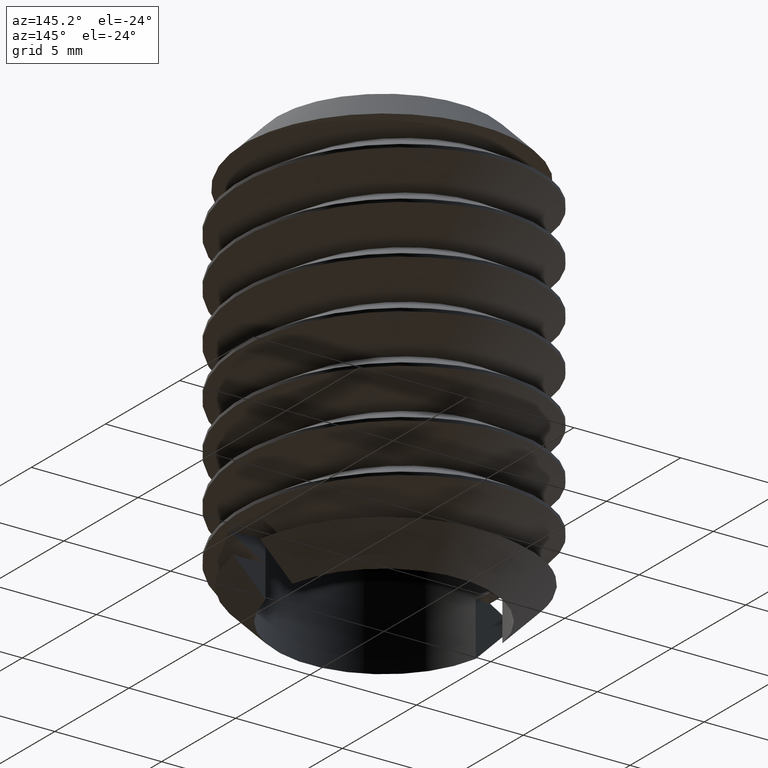
[diagram: clean part render]
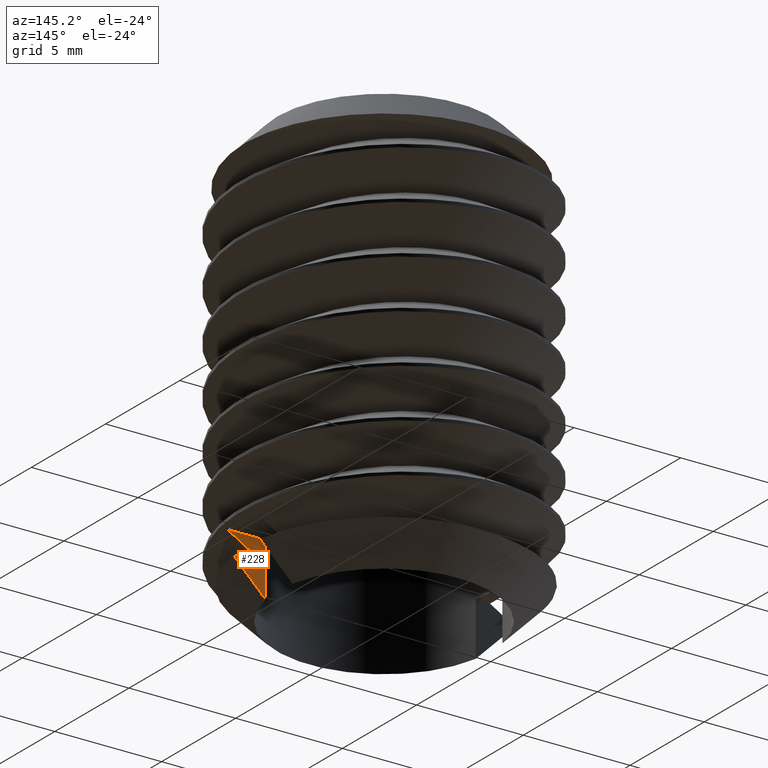
[diagram: same view with one face highlighted and labeled with its STEP entity id]
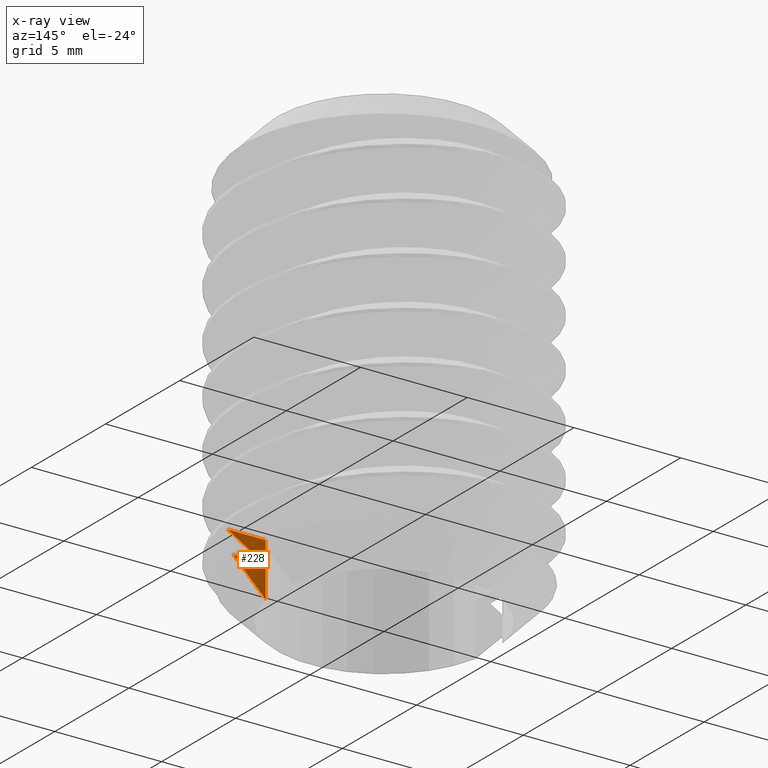
[diagram: x-ray of the same camera — body ghosted, the highlighted face saturated]
A machine part, auxiliary view. The second image highlights one B-rep face of the part: STEP entity #228.
The next image is the same camera in x-ray: the body ghosted, the highlighted face saturated — about 0% of this face is hidden behind the body in this view.
In plain terms, the highlighted planar face has unit normal (0, -1, 0).
Its self-contained STEP definition (entity closure, byte-faithful):
#5 = EDGE_LOOP ( 'NONE', ( #2209, #2208, #2207, #2206, #2205, #2204 ) ) ;
#58 = FACE_OUTER_BOUND ( 'NONE', #5, .T. ) ;
#75 = LINE ( 'NONE', #1360, #76 ) ;
#76 = VECTOR ( 'NONE', #1283, 1000.000000000000000 ) ;
#87 = LINE ( 'NONE', #1419, #89 ) ;
#89 = VECTOR ( 'NONE', #1374, 1000.000000000000000 ) ;
#133 = LINE ( 'NONE', #1759, #135 ) ;
#135 = VECTOR ( 'NONE', #1760, 1000.000000000000000 ) ;
#217 = B_SPLINE_CURVE_WITH_KNOTS ( 'NONE', 3,
 ( #1761, #1762, #1763, #1764 ),
 .UNSPECIFIED., .F., .F.,
 ( 4, 4 ),
 ( 0.01180894768608565000, 0.01394378551702533800 ),
 .UNSPECIFIED. ) ;
#228 = ADVANCED_FACE ( 'NONE', ( #58 ), #2236, .F. ) ;
#236 = EDGE_CURVE ( 'NONE', #1115, #1085, #1229, .T. ) ;
#242 = EDGE_CURVE ( 'NONE', #1115, #1096, #75, .T. ) ;
#260 = EDGE_CURVE ( 'NONE', #1096, #1111, #87, .T. ) ;
#263 = EDGE_CURVE ( 'NONE', #1085, #1143, #1222, .T. ) ;
#324 = EDGE_CURVE ( 'NONE', #1138, #1143, #133, .T. ) ;
#325 = EDGE_CURVE ( 'NONE', #1138, #1111, #217, .T. ) ;
#334 = AXIS2_PLACEMENT_3D ( 'NONE', #2238, #2237, #2232 ) ;
#976 = CARTESIAN_POINT ( 'NONE',  ( 5.053821436409392300, -0.9000000000000001300, -18.46117244374334400 ) ) ;
#987 = CARTESIAN_POINT ( 'NONE',  ( 4.918333050943175500, -0.9000000000000000200, -17.50000000000000000 ) ) ;
#1001 = CARTESIAN_POINT ( 'NONE',  ( 4.918333050943175500, -0.9000000000000000200, -20.00000000000000000 ) ) ;
#1005 = CARTESIAN_POINT ( 'NONE',  ( 6.711471421925498500, -0.9000000000000000200, -17.50000000000000000 ) ) ;
#1026 = CARTESIAN_POINT ( 'NONE',  ( 6.437390775772401600, -0.9000000000000000200, -18.50000000000000000 ) ) ;
#1031 = CARTESIAN_POINT ( 'NONE',  ( 5.123606990028542400, -0.9000000000000000200, -18.50000000000000000 ) ) ;
#1085 = VERTEX_POINT ( 'NONE', #976 ) ;
#1096 = VERTEX_POINT ( 'NONE', #987 ) ;
#1111 = VERTEX_POINT ( 'NONE', #1001 ) ;
#1115 = VERTEX_POINT ( 'NONE', #1005 ) ;
#1138 = VERTEX_POINT ( 'NONE', #1026 ) ;
#1143 = VERTEX_POINT ( 'NONE', #1031 ) ;
#1222 = B_SPLINE_CURVE_WITH_KNOTS ( 'NONE', 3,
 ( #1463, #1397, #1266, #1416 ),
 .UNSPECIFIED., .F., .F.,
 ( 4, 4 ),
 ( 0.0000000000000000000, 7.985981649865344700E-005 ),
 .UNSPECIFIED. ) ;
#1229 = B_SPLINE_CURVE_WITH_KNOTS ( 'NONE', 3,
 ( #2247, #2281, #2273, #2264, #2288, #2276, #2269, #2271, #2248, #2300 ),
 .UNSPECIFIED., .F., .F.,
 ( 4, 3, 3, 4 ),
 ( 1.734723475976807100E-018, 0.0006428695492857630500, 0.001279513046918441700, 0.001916156656694880400 ),
 .UNSPECIFIED. ) ;
#1266 = CARTESIAN_POINT ( 'NONE',  ( 5.100347936012027200, -0.9000000000000005800, -18.48705245507996500 ) ) ;
#1283 = DIRECTION ( 'NONE',  ( -1.000000000000000000, 0.0000000000000000000, 0.0000000000000000000 ) ) ;
#1360 = CARTESIAN_POINT ( 'NONE',  ( 7.417297606482386600, -0.9000000000000000200, -17.50000000000000000 ) ) ;
#1374 = DIRECTION ( 'NONE',  ( -0.0000000000000000000, -0.0000000000000000000, -1.000000000000000000 ) ) ;
#1397 = CARTESIAN_POINT ( 'NONE',  ( 5.077086122181292200, -0.9000000000000001300, -18.47410986655989300 ) ) ;
#1416 = CARTESIAN_POINT ( 'NONE',  ( 5.123606990028542400, -0.9000000000000000200, -18.50000000000000000 ) ) ;
#1419 = CARTESIAN_POINT ( 'NONE',  ( 4.918333050943175500, -0.9000000000000000200, 0.0000000000000000000 ) ) ;
#1463 = CARTESIAN_POINT ( 'NONE',  ( 5.053821436409392300, -0.9000000000000001300, -18.46117244374334400 ) ) ;
#1759 = CARTESIAN_POINT ( 'NONE',  ( 0.0000000000000000000, -0.9000000000000000200, -18.50000000000000000 ) ) ;
#1760 = DIRECTION ( 'NONE',  ( -1.000000000000000000, 0.0000000000000000000, 0.0000000000000000000 ) ) ;
#1761 = CARTESIAN_POINT ( 'NONE',  ( 6.437390775772401600, -0.9000000000000000200, -18.50000000000000000 ) ) ;
#1762 = CARTESIAN_POINT ( 'NONE',  ( 5.931775395675315600, -0.9000000000000000200, -19.00074519752702800 ) ) ;
#1763 = CARTESIAN_POINT ( 'NONE',  ( 5.425647199064243900, -0.9000000000000000200, -19.50097201161700500 ) ) ;
#1764 = CARTESIAN_POINT ( 'NONE',  ( 4.918333050943175500, -0.9000000000000000200, -20.00000000000000000 ) ) ;
#2204 = ORIENTED_EDGE ( 'NONE', *, *, #242, .F. ) ;
#2205 = ORIENTED_EDGE ( 'NONE', *, *, #260, .F. ) ;
#2206 = ORIENTED_EDGE ( 'NONE', *, *, #325, .T. ) ;
#2207 = ORIENTED_EDGE ( 'NONE', *, *, #324, .F. ) ;
#2208 = ORIENTED_EDGE ( 'NONE', *, *, #263, .T. ) ;
#2209 = ORIENTED_EDGE ( 'NONE', *, *, #236, .T. ) ;
#2232 = DIRECTION ( 'NONE',  ( 0.0000000000000000000, -0.0000000000000000000, -1.000000000000000000 ) ) ;
#2236 = PLANE ( 'NONE',  #334 ) ;
#2237 = DIRECTION ( 'NONE',  ( 0.0000000000000000000, -1.000000000000000000, 0.0000000000000000000 ) ) ;
#2238 = CARTESIAN_POINT ( 'NONE',  ( 7.417297606482386600, -0.9000000000000000200, -17.50000000000000000 ) ) ;
#2247 = CARTESIAN_POINT ( 'NONE',  ( 6.711471421925498500, -0.9000000000000000200, -17.50000000000000000 ) ) ;
#2248 = CARTESIAN_POINT ( 'NONE',  ( 5.237336417565656700, -0.9000000000000002400, -18.35460199763788600 ) ) ;
#2264 = CARTESIAN_POINT ( 'NONE',  ( 6.155215958413501600, -0.9000000000001113800, -17.82227490859812800 ) ) ;
#2269 = CARTESIAN_POINT ( 'NONE',  ( 5.604450269051809200, -0.9000000000002415000, -18.14160560677499800 ) ) ;
#2271 = CARTESIAN_POINT ( 'NONE',  ( 5.420882185486489000, -0.9000000000002415000, -18.24808455769045800 ) ) ;
#2273 = CARTESIAN_POINT ( 'NONE',  ( 6.340618715804128900, -0.9000000000001113800, -17.71482279245824600 ) ) ;
#2276 = CARTESIAN_POINT ( 'NONE',  ( 5.788018321989408600, -0.9000000000002415000, -18.03512667362520000 ) ) ;
#2281 = CARTESIAN_POINT ( 'NONE',  ( 6.526038562525953600, -0.9000000000000019100, -17.60740015999008200 ) ) ;
#2288 = CARTESIAN_POINT ( 'NONE',  ( 5.971608787210517000, -0.9000000000001113800, -17.92868637389608800 ) ) ;
#2300 = CARTESIAN_POINT ( 'NONE',  ( 5.053821436409392300, -0.9000000000000001300, -18.46117244374334400 ) ) ;